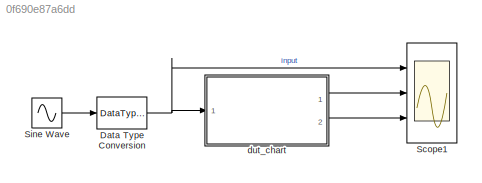
MODEL slx_0f690e87a6dd
KIND model
CONFIG AbsTol = auto
CONFIG FixedStep = auto
CONFIG MaxStep = auto
CONFIG MinStep = auto
CONFIG RelTol = 1e-3
CONFIG SampleTimeConstraint = Unconstrained
CONFIG Solver = FixedStepDiscrete
CONFIG SolverMode = SingleTasking
CONFIG SolverName = FixedStepDiscrete
CONFIG StartTime = 0.0
CONFIG StopTime = 1/5
BLOCK [DataTypeConversion] Data Type Conversion
  OutDataTypeStr = int8
  RndMeth = Floor
  SaturateOnIntegerOverflow = off
BLOCK [Scope] Scope1
  NumInputPorts = 3
  Ports = [3]
  ScopeSpecificationString = Simulink.scopes.TimeScopeBlockCfg('CurrentConfiguration', extmgr.ConfigurationSet(extmgr.Configuration('Core','General UI',true),extmgr.Configuration('Core','Source UI',true),extmgr.Configuration('Sources','WiredSimulink',true,'DataLoggingSaveFormat','StructureWithTime','DataLoggingDecimation','1','DataLoggingDecimateData',true),extmgr.Configuration('Visuals','Time Domain',true,'SerializedDisplays...<+3067ch>
BLOCK [Sin] Sine Wave
  Amplitude = 127
  Frequency = 2*pi*10
  Ports = [0, 1]
  SampleTime = 1/100
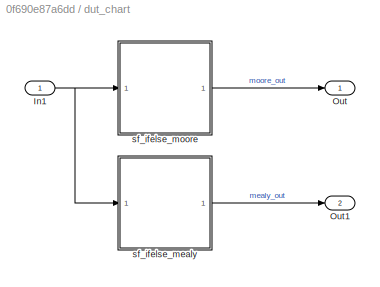
BLOCK [SubSystem] dut_chart
  Ports = [1, 2]
  RequestExecContextInheritance = off
  Variant = off
BLOCK [Inport] dut_chart/In1
  IconDisplay = Port number
BLOCK [Outport] dut_chart/Out
  IconDisplay = Port number
BLOCK [Outport] dut_chart/Out1
  IconDisplay = Port number
  Port = 2
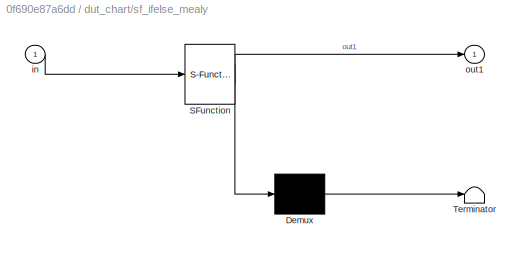
BLOCK [SubSystem] dut_chart/sf_ifelse_mealy
  ErrorFcn = Stateflow.Translate.translate
  PermitHierarchicalResolution = ExplicitOnly
  Ports = [1, 1]
  RequestExecContextInheritance = off
  SFBlockType = Chart
  TreatAsAtomicUnit = on
  Variant = off
BLOCK [Demux] dut_chart/sf_ifelse_mealy/ Demux 
  Outputs = 1
  Ports = [1, 1]
BLOCK [S-Function] dut_chart/sf_ifelse_mealy/ SFunction 
  EnableBusSupport = on
  FunctionName = sf_sfun
  PortCounts = [1 2]
  Ports = [1, 2]
  SFunctionDeploymentMode = off
  Tag = Stateflow S-Function sf_ifelse 1
BLOCK [Terminator] dut_chart/sf_ifelse_mealy/ Terminator 
BLOCK [Inport] dut_chart/sf_ifelse_mealy/in
  IconDisplay = Port number
BLOCK [Outport] dut_chart/sf_ifelse_mealy/out1
  IconDisplay = Port number
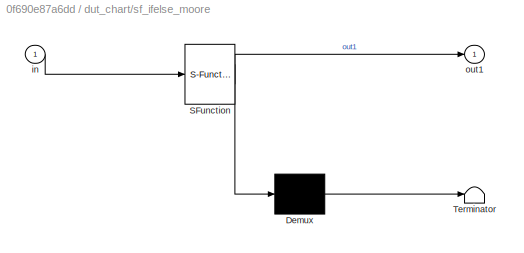
BLOCK [SubSystem] dut_chart/sf_ifelse_moore
  ErrorFcn = Stateflow.Translate.translate
  PermitHierarchicalResolution = ExplicitOnly
  Ports = [1, 1]
  RequestExecContextInheritance = off
  SFBlockType = Chart
  TreatAsAtomicUnit = on
  Variant = off
BLOCK [Demux] dut_chart/sf_ifelse_moore/ Demux 
  Outputs = 1
  Ports = [1, 1]
BLOCK [S-Function] dut_chart/sf_ifelse_moore/ SFunction 
  EnableBusSupport = on
  FunctionName = sf_sfun
  PortCounts = [1 2]
  Ports = [1, 2]
  SFunctionDeploymentMode = off
  Tag = Stateflow S-Function sf_ifelse 4
BLOCK [Terminator] dut_chart/sf_ifelse_moore/ Terminator 
BLOCK [Inport] dut_chart/sf_ifelse_moore/in
  IconDisplay = Port number
BLOCK [Outport] dut_chart/sf_ifelse_moore/out1
  IconDisplay = Port number
NET Data Type Conversion:1 -> Scope1:1, dut_chart:1
LINE Sine Wave:1 -> Data Type Conversion:1
NET dut_chart/In1:1 -> dut_chart/sf_ifelse_mealy:1, dut_chart/sf_ifelse_moore:1
LINE dut_chart/sf_ifelse_mealy:1 -> dut_chart/Out1:1
LINE dut_chart/sf_ifelse_moore:1 -> dut_chart/Out:1
LINE dut_chart:1 -> Scope1:2
LINE dut_chart:2 -> Scope1:3
note: NET lines group one-source signal fan-out (src -> all destinations, sorted); 1:1 wires keep LINE
CHART dut_chart/sf_ifelse_mealy states=2 transitions=5
  STATE_LABEL 'Init/'
  STATE_LABEL 'On1/'
CHART dut_chart/sf_ifelse_moore states=2 transitions=5
  STATE_LABEL 'Init/\nout1 = 2;'
  STATE_LABEL 'On1/\nout1 = 1;'
